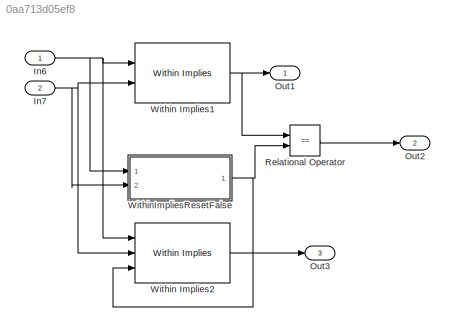
MODEL slx_0aa713d05ef8
KIND model
CONFIG AbsTol = auto
CONFIG EnableMultiTasking = off
CONFIG FixedStep = 0.200000
CONFIG MaxStep = auto
CONFIG MinStep = auto
CONFIG RelTol = 1e-3
CONFIG SampleTimeConstraint = Unconstrained
CONFIG Solver = FixedStepDiscrete
CONFIG SolverName = FixedStepDiscrete
CONFIG StartTime = 0.0
CONFIG StopTime = 10.0
BLOCK [Inport] In6
  IconDisplay = Port number
  OutDataTypeStr = boolean
BLOCK [Inport] In7
  IconDisplay = Port number
  OutDataTypeStr = boolean
  Port = 2
BLOCK [Outport] Out1
  IconDisplay = Port number
BLOCK [Outport] Out2
  IconDisplay = Port number
  Port = 2
BLOCK [Outport] Out3
  IconDisplay = Port number
  Port = 3
BLOCK [RelationalOperator] Relational Operator
  InputSameDT = off
  Operator = ==
  OutDataTypeStr = boolean
  Ports = [2, 1]
BLOCK [Reference] Within Implies1  REF=sldvlib/Temporal Operators/Within Implies
  Ports = [2, 1]
  SourceBlock = sldvlib/Temporal Operators/Within Implies
  SourceProductBaseCode = DV
  SourceProductName = Simulink Design Verifier
  SourceType = Within Implies
BLOCK [Reference] Within Implies2  REF=sldvlib/Temporal Operators/Within Implies
  Ports = [3, 1]
  SourceBlock = sldvlib/Temporal Operators/Within Implies
  SourceProductBaseCode = DV
  SourceProductName = Simulink Design Verifier
  SourceType = Within Implies
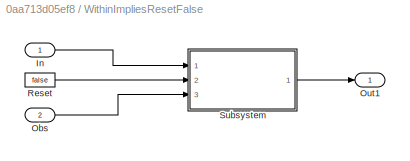
BLOCK [SubSystem] WithinImpliesResetFalse
  Ports = [2, 1]
  RequestExecContextInheritance = off
  Variant = off
BLOCK [Inport] WithinImpliesResetFalse/In
  IconDisplay = Port number
  OutDataTypeStr = boolean
BLOCK [Inport] WithinImpliesResetFalse/Obs
  IconDisplay = Port number
  OutDataTypeStr = boolean
  Port = 2
BLOCK [Outport] WithinImpliesResetFalse/Out1
  IconDisplay = Port number
BLOCK [Constant] WithinImpliesResetFalse/Reset
  Value = false
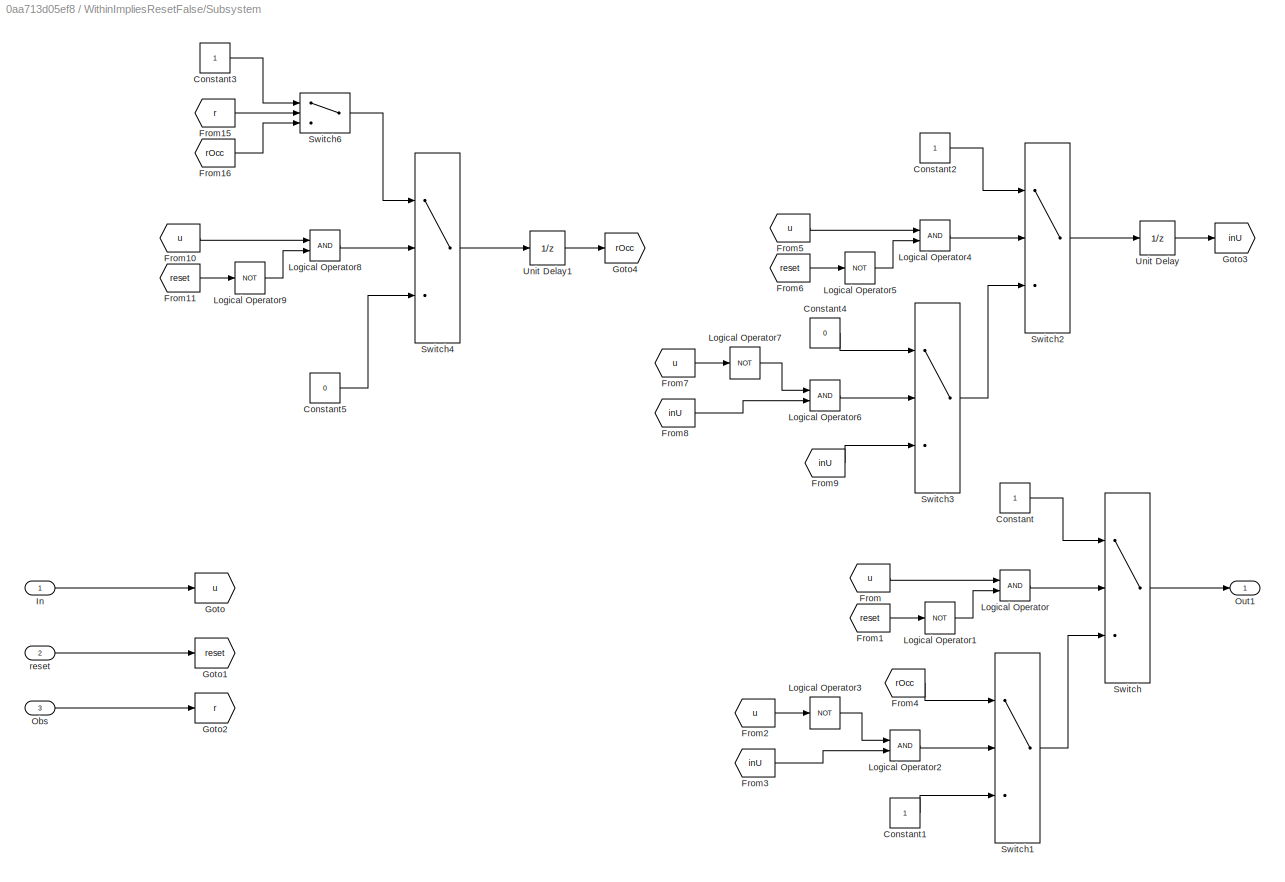
BLOCK [SubSystem] WithinImpliesResetFalse/Subsystem
  Ports = [3, 1]
  RequestExecContextInheritance = off
  Variant = off
BLOCK [Constant] WithinImpliesResetFalse/Subsystem/Constant
  OutDataTypeStr = boolean
BLOCK [Constant] WithinImpliesResetFalse/Subsystem/Constant1
  OutDataTypeStr = boolean
BLOCK [Constant] WithinImpliesResetFalse/Subsystem/Constant2
  OutDataTypeStr = boolean
BLOCK [Constant] WithinImpliesResetFalse/Subsystem/Constant3
  OutDataTypeStr = boolean
BLOCK [Constant] WithinImpliesResetFalse/Subsystem/Constant4
  OutDataTypeStr = boolean
  Value = 0
BLOCK [Constant] WithinImpliesResetFalse/Subsystem/Constant5
  OutDataTypeStr = boolean
  Value = 0
BLOCK [From] WithinImpliesResetFalse/Subsystem/From
  GotoTag = u
BLOCK [From] WithinImpliesResetFalse/Subsystem/From1
  GotoTag = reset
BLOCK [From] WithinImpliesResetFalse/Subsystem/From10
  GotoTag = u
BLOCK [From] WithinImpliesResetFalse/Subsystem/From11
  GotoTag = reset
BLOCK [From] WithinImpliesResetFalse/Subsystem/From15
  GotoTag = r
BLOCK [From] WithinImpliesResetFalse/Subsystem/From16
  GotoTag = rOcc
BLOCK [From] WithinImpliesResetFalse/Subsystem/From2
  GotoTag = u
BLOCK [From] WithinImpliesResetFalse/Subsystem/From3
  GotoTag = inU
BLOCK [From] WithinImpliesResetFalse/Subsystem/From4
  GotoTag = rOcc
BLOCK [From] WithinImpliesResetFalse/Subsystem/From5
  GotoTag = u
BLOCK [From] WithinImpliesResetFalse/Subsystem/From6
  GotoTag = reset
BLOCK [From] WithinImpliesResetFalse/Subsystem/From7
  GotoTag = u
BLOCK [From] WithinImpliesResetFalse/Subsystem/From8
  GotoTag = inU
BLOCK [From] WithinImpliesResetFalse/Subsystem/From9
  GotoTag = inU
BLOCK [Goto] WithinImpliesResetFalse/Subsystem/Goto
  GotoTag = u
BLOCK [Goto] WithinImpliesResetFalse/Subsystem/Goto1
  GotoTag = reset
BLOCK [Goto] WithinImpliesResetFalse/Subsystem/Goto2
  GotoTag = r
BLOCK [Goto] WithinImpliesResetFalse/Subsystem/Goto3
  GotoTag = inU
BLOCK [Goto] WithinImpliesResetFalse/Subsystem/Goto4
  GotoTag = rOcc
BLOCK [Inport] WithinImpliesResetFalse/Subsystem/In
  IconDisplay = Port number
  OutDataTypeStr = boolean
BLOCK [Logic] WithinImpliesResetFalse/Subsystem/Logical Operator
  AllPortsSameDT = off
  OutDataTypeStr = boolean
  Ports = [2, 1]
BLOCK [Logic] WithinImpliesResetFalse/Subsystem/Logical Operator1
  AllPortsSameDT = off
  Operator = NOT
  OutDataTypeStr = boolean
  Ports = [1, 1]
BLOCK [Logic] WithinImpliesResetFalse/Subsystem/Logical Operator2
  AllPortsSameDT = off
  OutDataTypeStr = boolean
  Ports = [2, 1]
BLOCK [Logic] WithinImpliesResetFalse/Subsystem/Logical Operator3
  AllPortsSameDT = off
  Operator = NOT
  OutDataTypeStr = boolean
  Ports = [1, 1]
BLOCK [Logic] WithinImpliesResetFalse/Subsystem/Logical Operator4
  AllPortsSameDT = off
  OutDataTypeStr = boolean
  Ports = [2, 1]
BLOCK [Logic] WithinImpliesResetFalse/Subsystem/Logical Operator5
  AllPortsSameDT = off
  Operator = NOT
  OutDataTypeStr = boolean
  Ports = [1, 1]
BLOCK [Logic] WithinImpliesResetFalse/Subsystem/Logical Operator6
  AllPortsSameDT = off
  OutDataTypeStr = boolean
  Ports = [2, 1]
BLOCK [Logic] WithinImpliesResetFalse/Subsystem/Logical Operator7
  AllPortsSameDT = off
  Operator = NOT
  OutDataTypeStr = boolean
  Ports = [1, 1]
BLOCK [Logic] WithinImpliesResetFalse/Subsystem/Logical Operator8
  AllPortsSameDT = off
  OutDataTypeStr = boolean
  Ports = [2, 1]
BLOCK [Logic] WithinImpliesResetFalse/Subsystem/Logical Operator9
  AllPortsSameDT = off
  Operator = NOT
  OutDataTypeStr = boolean
  Ports = [1, 1]
BLOCK [Inport] WithinImpliesResetFalse/Subsystem/Obs
  IconDisplay = Port number
  OutDataTypeStr = boolean
  Port = 3
BLOCK [Outport] WithinImpliesResetFalse/Subsystem/Out1
  IconDisplay = Port number
BLOCK [Switch] WithinImpliesResetFalse/Subsystem/Switch
  Criteria = u2 ~= 0
  InputSameDT = off
  SaturateOnIntegerOverflow = off
BLOCK [Switch] WithinImpliesResetFalse/Subsystem/Switch1
  Criteria = u2 ~= 0
  InputSameDT = off
  SaturateOnIntegerOverflow = off
BLOCK [Switch] WithinImpliesResetFalse/Subsystem/Switch2
  Criteria = u2 ~= 0
  InputSameDT = off
  SaturateOnIntegerOverflow = off
BLOCK [Switch] WithinImpliesResetFalse/Subsystem/Switch3
  Criteria = u2 ~= 0
  InputSameDT = off
  SaturateOnIntegerOverflow = off
BLOCK [Switch] WithinImpliesResetFalse/Subsystem/Switch4
  Criteria = u2 ~= 0
  InputSameDT = off
  SaturateOnIntegerOverflow = off
BLOCK [Switch] WithinImpliesResetFalse/Subsystem/Switch6
  Criteria = u2 ~= 0
  InputSameDT = off
  SaturateOnIntegerOverflow = off
BLOCK [UnitDelay] WithinImpliesResetFalse/Subsystem/Unit Delay
  InputProcessing = Elements as channels (sample based)
  SampleTime = -1
BLOCK [UnitDelay] WithinImpliesResetFalse/Subsystem/Unit Delay1
  InputProcessing = Elements as channels (sample based)
  SampleTime = -1
BLOCK [Inport] WithinImpliesResetFalse/Subsystem/reset
  IconDisplay = Port number
  Port = 2
NET In6:1 -> Within Implies1:1, Within Implies2:1, WithinImpliesResetFalse:1
NET In7:1 -> Within Implies1:2, Within Implies2:2, WithinImpliesResetFalse:2
LINE Relational Operator:1 -> Out2:1
NET Within Implies1:1 -> Out1:1, Relational Operator:1
LINE Within Implies2:1 -> Out3:1
LINE WithinImpliesResetFalse/In:1 -> WithinImpliesResetFalse/Subsystem:1
LINE WithinImpliesResetFalse/Obs:1 -> WithinImpliesResetFalse/Subsystem:3
LINE WithinImpliesResetFalse/Reset:1 -> WithinImpliesResetFalse/Subsystem:2
LINE WithinImpliesResetFalse/Subsystem/Constant1:1 -> WithinImpliesResetFalse/Subsystem/Switch1:3
LINE WithinImpliesResetFalse/Subsystem/Constant2:1 -> WithinImpliesResetFalse/Subsystem/Switch2:1
LINE WithinImpliesResetFalse/Subsystem/Constant3:1 -> WithinImpliesResetFalse/Subsystem/Switch6:1
LINE WithinImpliesResetFalse/Subsystem/Constant4:1 -> WithinImpliesResetFalse/Subsystem/Switch3:1
LINE WithinImpliesResetFalse/Subsystem/Constant5:1 -> WithinImpliesResetFalse/Subsystem/Switch4:3
LINE WithinImpliesResetFalse/Subsystem/Constant:1 -> WithinImpliesResetFalse/Subsystem/Switch:1
LINE WithinImpliesResetFalse/Subsystem/From10:1 -> WithinImpliesResetFalse/Subsystem/Logical Operator8:1
LINE WithinImpliesResetFalse/Subsystem/From11:1 -> WithinImpliesResetFalse/Subsystem/Logical Operator9:1
LINE WithinImpliesResetFalse/Subsystem/From15:1 -> WithinImpliesResetFalse/Subsystem/Switch6:2
LINE WithinImpliesResetFalse/Subsystem/From16:1 -> WithinImpliesResetFalse/Subsystem/Switch6:3
LINE WithinImpliesResetFalse/Subsystem/From1:1 -> WithinImpliesResetFalse/Subsystem/Logical Operator1:1
LINE WithinImpliesResetFalse/Subsystem/From2:1 -> WithinImpliesResetFalse/Subsystem/Logical Operator3:1
LINE WithinImpliesResetFalse/Subsystem/From3:1 -> WithinImpliesResetFalse/Subsystem/Logical Operator2:2
LINE WithinImpliesResetFalse/Subsystem/From4:1 -> WithinImpliesResetFalse/Subsystem/Switch1:1
LINE WithinImpliesResetFalse/Subsystem/From5:1 -> WithinImpliesResetFalse/Subsystem/Logical Operator4:1
LINE WithinImpliesResetFalse/Subsystem/From6:1 -> WithinImpliesResetFalse/Subsystem/Logical Operator5:1
LINE WithinImpliesResetFalse/Subsystem/From7:1 -> WithinImpliesResetFalse/Subsystem/Logical Operator7:1
LINE WithinImpliesResetFalse/Subsystem/From8:1 -> WithinImpliesResetFalse/Subsystem/Logical Operator6:2
LINE WithinImpliesResetFalse/Subsystem/From9:1 -> WithinImpliesResetFalse/Subsystem/Switch3:3
LINE WithinImpliesResetFalse/Subsystem/From:1 -> WithinImpliesResetFalse/Subsystem/Logical Operator:1
LINE WithinImpliesResetFalse/Subsystem/In:1 -> WithinImpliesResetFalse/Subsystem/Goto:1
LINE WithinImpliesResetFalse/Subsystem/Logical Operator1:1 -> WithinImpliesResetFalse/Subsystem/Logical Operator:2
LINE WithinImpliesResetFalse/Subsystem/Logical Operator2:1 -> WithinImpliesResetFalse/Subsystem/Switch1:2
LINE WithinImpliesResetFalse/Subsystem/Logical Operator3:1 -> WithinImpliesResetFalse/Subsystem/Logical Operator2:1
LINE WithinImpliesResetFalse/Subsystem/Logical Operator4:1 -> WithinImpliesResetFalse/Subsystem/Switch2:2
LINE WithinImpliesResetFalse/Subsystem/Logical Operator5:1 -> WithinImpliesResetFalse/Subsystem/Logical Operator4:2
LINE WithinImpliesResetFalse/Subsystem/Logical Operator6:1 -> WithinImpliesResetFalse/Subsystem/Switch3:2
LINE WithinImpliesResetFalse/Subsystem/Logical Operator7:1 -> WithinImpliesResetFalse/Subsystem/Logical Operator6:1
LINE WithinImpliesResetFalse/Subsystem/Logical Operator8:1 -> WithinImpliesResetFalse/Subsystem/Switch4:2
LINE WithinImpliesResetFalse/Subsystem/Logical Operator9:1 -> WithinImpliesResetFalse/Subsystem/Logical Operator8:2
LINE WithinImpliesResetFalse/Subsystem/Logical Operator:1 -> WithinImpliesResetFalse/Subsystem/Switch:2
LINE WithinImpliesResetFalse/Subsystem/Obs:1 -> WithinImpliesResetFalse/Subsystem/Goto2:1
LINE WithinImpliesResetFalse/Subsystem/Switch1:1 -> WithinImpliesResetFalse/Subsystem/Switch:3
LINE WithinImpliesResetFalse/Subsystem/Switch2:1 -> WithinImpliesResetFalse/Subsystem/Unit Delay:1
LINE WithinImpliesResetFalse/Subsystem/Switch3:1 -> WithinImpliesResetFalse/Subsystem/Switch2:3
LINE WithinImpliesResetFalse/Subsystem/Switch4:1 -> WithinImpliesResetFalse/Subsystem/Unit Delay1:1
LINE WithinImpliesResetFalse/Subsystem/Switch6:1 -> WithinImpliesResetFalse/Subsystem/Switch4:1
LINE WithinImpliesResetFalse/Subsystem/Switch:1 -> WithinImpliesResetFalse/Subsystem/Out1:1
LINE WithinImpliesResetFalse/Subsystem/Unit Delay1:1 -> WithinImpliesResetFalse/Subsystem/Goto4:1
LINE WithinImpliesResetFalse/Subsystem/Unit Delay:1 -> WithinImpliesResetFalse/Subsystem/Goto3:1
LINE WithinImpliesResetFalse/Subsystem/reset:1 -> WithinImpliesResetFalse/Subsystem/Goto1:1
LINE WithinImpliesResetFalse/Subsystem:1 -> WithinImpliesResetFalse/Out1:1
NET WithinImpliesResetFalse:1 -> Relational Operator:2, Within Implies2:3
note: NET lines group one-source signal fan-out (src -> all destinations, sorted); 1:1 wires keep LINE
